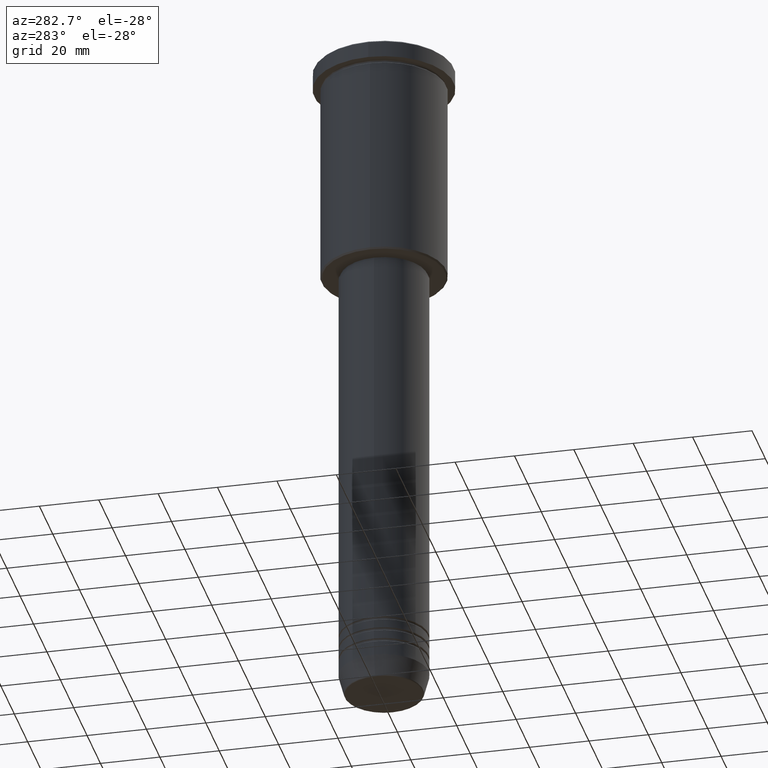
[diagram: clean part render]
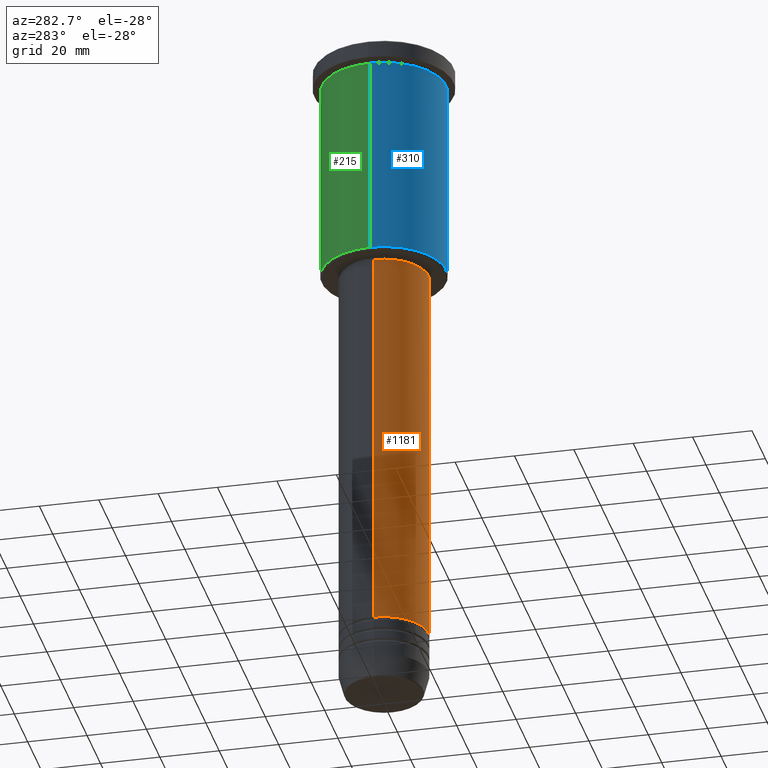
[diagram: same view with three faces highlighted in distinct colors, each labeled with its STEP entity id]
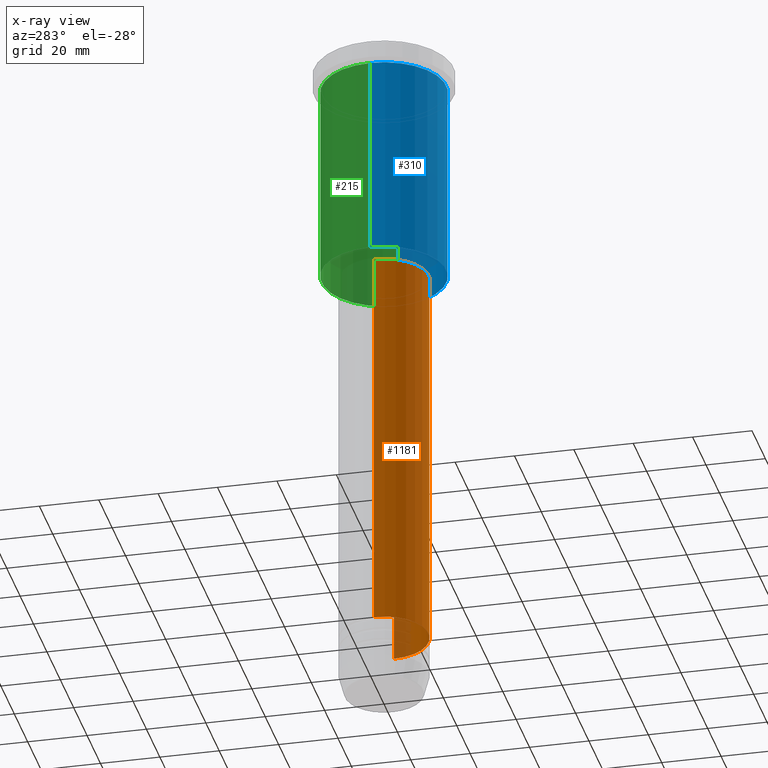
[diagram: x-ray of the same camera — body ghosted, the three highlighted faces saturated]
A machine part, auxiliary view with three faces highlighted in distinct colors.
The next image is the same camera in x-ray (body ghosted, the three faces saturated) — at least one of them is partly hidden behind the body in this view.
Their STEP definitions:

[orange] entity #1181 — the highlighted cylindrical surface (partial cylindrical patch) has radius 15 mm, axis along (-0, -0, 1).
#23 = VECTOR ( 'NONE', #330, 1000.000000000000000 ) ;
#66 = VERTEX_POINT ( 'NONE', #372 ) ;
#176 = VERTEX_POINT ( 'NONE', #199 ) ;
#183 = FACE_OUTER_BOUND ( 'NONE', #1091, .T. ) ;
#184 = DIRECTION ( 'NONE',  ( 1.000000000000000000, 0.000000000000000000, 0.000000000000000000 ) ) ;
#199 = CARTESIAN_POINT ( 'NONE',  ( 15.00000000000000000, 0.000000000000000000, -209.9999999999998863 ) ) ;
#218 = CARTESIAN_POINT ( 'NONE',  ( 0.000000000000000000, 0.000000000000000000, -209.9999999999998863 ) ) ;
#247 = ORIENTED_EDGE ( 'NONE', *, *, #375, .F. ) ;
#256 = LINE ( 'NONE', #980, #1016 ) ;
#281 = ORIENTED_EDGE ( 'NONE', *, *, #771, .F. ) ;
#330 = DIRECTION ( 'NONE',  ( -0.000000000000000000, -0.000000000000000000, 1.000000000000000000 ) ) ;
#348 = CYLINDRICAL_SURFACE ( 'NONE', #509, 15.00000000000000000 ) ;
#372 = CARTESIAN_POINT ( 'NONE',  ( -15.00000000000000000, 1.836970198721029589E-15, -209.9999999999998863 ) ) ;
#375 = EDGE_CURVE ( 'NONE', #66, #788, #256, .T. ) ;
#407 = EDGE_CURVE ( 'NONE', #66, #176, #434, .T. ) ;
#433 = CARTESIAN_POINT ( 'NONE',  ( 0.000000000000000000, 0.000000000000000000, 0.000000000000000000 ) ) ;
#434 = CIRCLE ( 'NONE', #1112, 15.00000000000000000 ) ;
#446 = ORIENTED_EDGE ( 'NONE', *, *, #584, .T. ) ;
#469 = DIRECTION ( 'NONE',  ( -0.000000000000000000, -0.000000000000000000, 1.000000000000000000 ) ) ;
#497 = VERTEX_POINT ( 'NONE', #661 ) ;
#509 = AXIS2_PLACEMENT_3D ( 'NONE', #433, #724, #629 ) ;
#545 = DIRECTION ( 'NONE',  ( -0.000000000000000000, -0.000000000000000000, 1.000000000000000000 ) ) ;
#584 = EDGE_CURVE ( 'NONE', #176, #497, #1145, .T. ) ;
#592 = AXIS2_PLACEMENT_3D ( 'NONE', #717, #545, #184 ) ;
#629 = DIRECTION ( 'NONE',  ( 1.000000000000000000, 0.000000000000000000, 0.000000000000000000 ) ) ;
#661 = CARTESIAN_POINT ( 'NONE',  ( 15.00000000000000000, 0.000000000000000000, -77.00000000000001421 ) ) ;
#687 = ORIENTED_EDGE ( 'NONE', *, *, #407, .T. ) ;
#717 = CARTESIAN_POINT ( 'NONE',  ( 0.000000000000000000, 0.000000000000000000, -77.00000000000001421 ) ) ;
#724 = DIRECTION ( 'NONE',  ( -0.000000000000000000, -0.000000000000000000, 1.000000000000000000 ) ) ;
#771 = EDGE_CURVE ( 'NONE', #788, #497, #806, .T. ) ;
#788 = VERTEX_POINT ( 'NONE', #1176 ) ;
#806 = CIRCLE ( 'NONE', #592, 15.00000000000000000 ) ;
#930 = DIRECTION ( 'NONE',  ( 1.000000000000000000, 0.000000000000000000, 0.000000000000000000 ) ) ;
#980 = CARTESIAN_POINT ( 'NONE',  ( -15.00000000000000000, 1.836970198721029589E-15, 0.000000000000000000 ) ) ;
#1016 = VECTOR ( 'NONE', #1093, 1000.000000000000000 ) ;
#1091 = EDGE_LOOP ( 'NONE', ( #247, #687, #446, #281 ) ) ;
#1093 = DIRECTION ( 'NONE',  ( -0.000000000000000000, -0.000000000000000000, 1.000000000000000000 ) ) ;
#1112 = AXIS2_PLACEMENT_3D ( 'NONE', #218, #469, #930 ) ;
#1145 = LINE ( 'NONE', #1153, #23 ) ;
#1153 = CARTESIAN_POINT ( 'NONE',  ( 15.00000000000000000, 0.000000000000000000, 0.000000000000000000 ) ) ;
#1176 = CARTESIAN_POINT ( 'NONE',  ( -15.00000000000000000, 1.836970198721029589E-15, -77.00000000000001421 ) ) ;
#1181 = ADVANCED_FACE ( 'NONE', ( #183 ), #348, .T. ) ;

[blue] entity #310 — the highlighted cylindrical surface (partial cylindrical patch) has radius 21 mm, axis along (-0, -0, 1).
#5 = AXIS2_PLACEMENT_3D ( 'NONE', #614, #637, #1081 ) ;
#50 = LINE ( 'NONE', #403, #118 ) ;
#118 = VECTOR ( 'NONE', #1137, 1000.000000000000000 ) ;
#139 = EDGE_CURVE ( 'NONE', #224, #769, #941, .T. ) ;
#152 = CARTESIAN_POINT ( 'NONE',  ( 21.00000000000000000, 0.000000000000000000, -6.999999999999993783 ) ) ;
#180 = FACE_OUTER_BOUND ( 'NONE', #682, .T. ) ;
#224 = VERTEX_POINT ( 'NONE', #421 ) ;
#225 = LINE ( 'NONE', #332, #253 ) ;
#253 = VECTOR ( 'NONE', #877, 1000.000000000000000 ) ;
#272 = VERTEX_POINT ( 'NONE', #985 ) ;
#310 = ADVANCED_FACE ( 'NONE', ( #180 ), #913, .T. ) ;
#332 = CARTESIAN_POINT ( 'NONE',  ( 21.00000000000000000, 0.000000000000000000, 0.000000000000000000 ) ) ;
#363 = CIRCLE ( 'NONE', #5, 21.00000000000000000 ) ;
#380 = DIRECTION ( 'NONE',  ( -0.000000000000000000, -0.000000000000000000, 1.000000000000000000 ) ) ;
#403 = CARTESIAN_POINT ( 'NONE',  ( -21.00000000000000000, 2.571758278209441661E-15, 0.000000000000000000 ) ) ;
#421 = CARTESIAN_POINT ( 'NONE',  ( -21.00000000000000000, 2.571758278209441661E-15, -75.50000000000001421 ) ) ;
#431 = DIRECTION ( 'NONE',  ( 1.000000000000000000, 0.000000000000000000, 0.000000000000000000 ) ) ;
#445 = ORIENTED_EDGE ( 'NONE', *, *, #918, .T. ) ;
#598 = VERTEX_POINT ( 'NONE', #152 ) ;
#614 = CARTESIAN_POINT ( 'NONE',  ( 0.000000000000000000, 0.000000000000000000, -6.999999999999993783 ) ) ;
#615 = CARTESIAN_POINT ( 'NONE',  ( 0.000000000000000000, 0.000000000000000000, 0.000000000000000000 ) ) ;
#637 = DIRECTION ( 'NONE',  ( -0.000000000000000000, -0.000000000000000000, 1.000000000000000000 ) ) ;
#682 = EDGE_LOOP ( 'NONE', ( #756, #1162, #445, #782 ) ) ;
#702 = EDGE_CURVE ( 'NONE', #224, #272, #50, .T. ) ;
#756 = ORIENTED_EDGE ( 'NONE', *, *, #702, .F. ) ;
#763 = CARTESIAN_POINT ( 'NONE',  ( 0.000000000000000000, 0.000000000000000000, -75.50000000000001421 ) ) ;
#769 = VERTEX_POINT ( 'NONE', #1077 ) ;
#782 = ORIENTED_EDGE ( 'NONE', *, *, #969, .F. ) ;
#877 = DIRECTION ( 'NONE',  ( -0.000000000000000000, -0.000000000000000000, 1.000000000000000000 ) ) ;
#881 = AXIS2_PLACEMENT_3D ( 'NONE', #615, #1174, #431 ) ;
#913 = CYLINDRICAL_SURFACE ( 'NONE', #881, 21.00000000000000000 ) ;
#918 = EDGE_CURVE ( 'NONE', #769, #598, #225, .T. ) ;
#928 = DIRECTION ( 'NONE',  ( -1.000000000000000000, 0.000000000000000000, 0.000000000000000000 ) ) ;
#941 = CIRCLE ( 'NONE', #1038, 21.00000000000000000 ) ;
#969 = EDGE_CURVE ( 'NONE', #272, #598, #363, .T. ) ;
#985 = CARTESIAN_POINT ( 'NONE',  ( -21.00000000000000000, 2.571758278209441661E-15, -6.999999999999993783 ) ) ;
#1038 = AXIS2_PLACEMENT_3D ( 'NONE', #763, #380, #928 ) ;
#1077 = CARTESIAN_POINT ( 'NONE',  ( 21.00000000000000000, 0.000000000000000000, -75.50000000000001421 ) ) ;
#1081 = DIRECTION ( 'NONE',  ( 1.000000000000000000, 0.000000000000000000, 0.000000000000000000 ) ) ;
#1137 = DIRECTION ( 'NONE',  ( -0.000000000000000000, -0.000000000000000000, 1.000000000000000000 ) ) ;
#1162 = ORIENTED_EDGE ( 'NONE', *, *, #139, .T. ) ;
#1174 = DIRECTION ( 'NONE',  ( -0.000000000000000000, -0.000000000000000000, 1.000000000000000000 ) ) ;

[green] entity #215 — the highlighted cylindrical surface (partial cylindrical patch) has radius 21 mm, axis along (-0, -0, 1).
#50 = LINE ( 'NONE', #403, #118 ) ;
#118 = VECTOR ( 'NONE', #1137, 1000.000000000000000 ) ;
#152 = CARTESIAN_POINT ( 'NONE',  ( 21.00000000000000000, 0.000000000000000000, -6.999999999999993783 ) ) ;
#158 = DIRECTION ( 'NONE',  ( -0.000000000000000000, -0.000000000000000000, 1.000000000000000000 ) ) ;
#215 = ADVANCED_FACE ( 'NONE', ( #607 ), #426, .T. ) ;
#224 = VERTEX_POINT ( 'NONE', #421 ) ;
#225 = LINE ( 'NONE', #332, #253 ) ;
#253 = VECTOR ( 'NONE', #877, 1000.000000000000000 ) ;
#272 = VERTEX_POINT ( 'NONE', #985 ) ;
#332 = CARTESIAN_POINT ( 'NONE',  ( 21.00000000000000000, 0.000000000000000000, 0.000000000000000000 ) ) ;
#342 = ORIENTED_EDGE ( 'NONE', *, *, #502, .T. ) ;
#403 = CARTESIAN_POINT ( 'NONE',  ( -21.00000000000000000, 2.571758278209441661E-15, 0.000000000000000000 ) ) ;
#404 = DIRECTION ( 'NONE',  ( -0.000000000000000000, -0.000000000000000000, 1.000000000000000000 ) ) ;
#421 = CARTESIAN_POINT ( 'NONE',  ( -21.00000000000000000, 2.571758278209441661E-15, -75.50000000000001421 ) ) ;
#426 = CYLINDRICAL_SURFACE ( 'NONE', #1070, 21.00000000000000000 ) ;
#472 = AXIS2_PLACEMENT_3D ( 'NONE', #679, #404, #1025 ) ;
#475 = AXIS2_PLACEMENT_3D ( 'NONE', #680, #775, #597 ) ;
#502 = EDGE_CURVE ( 'NONE', #769, #224, #765, .T. ) ;
#590 = ORIENTED_EDGE ( 'NONE', *, *, #691, .F. ) ;
#597 = DIRECTION ( 'NONE',  ( 1.000000000000000000, 0.000000000000000000, 0.000000000000000000 ) ) ;
#598 = VERTEX_POINT ( 'NONE', #152 ) ;
#607 = FACE_OUTER_BOUND ( 'NONE', #832, .T. ) ;
#679 = CARTESIAN_POINT ( 'NONE',  ( 0.000000000000000000, 0.000000000000000000, -75.50000000000001421 ) ) ;
#680 = CARTESIAN_POINT ( 'NONE',  ( 0.000000000000000000, 0.000000000000000000, -6.999999999999993783 ) ) ;
#691 = EDGE_CURVE ( 'NONE', #598, #272, #822, .T. ) ;
#693 = CARTESIAN_POINT ( 'NONE',  ( 0.000000000000000000, 0.000000000000000000, 0.000000000000000000 ) ) ;
#702 = EDGE_CURVE ( 'NONE', #224, #272, #50, .T. ) ;
#765 = CIRCLE ( 'NONE', #472, 21.00000000000000000 ) ;
#769 = VERTEX_POINT ( 'NONE', #1077 ) ;
#775 = DIRECTION ( 'NONE',  ( -0.000000000000000000, -0.000000000000000000, 1.000000000000000000 ) ) ;
#787 = ORIENTED_EDGE ( 'NONE', *, *, #918, .F. ) ;
#822 = CIRCLE ( 'NONE', #475, 21.00000000000000000 ) ;
#832 = EDGE_LOOP ( 'NONE', ( #342, #837, #590, #787 ) ) ;
#837 = ORIENTED_EDGE ( 'NONE', *, *, #702, .T. ) ;
#877 = DIRECTION ( 'NONE',  ( -0.000000000000000000, -0.000000000000000000, 1.000000000000000000 ) ) ;
#918 = EDGE_CURVE ( 'NONE', #769, #598, #225, .T. ) ;
#985 = CARTESIAN_POINT ( 'NONE',  ( -21.00000000000000000, 2.571758278209441661E-15, -6.999999999999993783 ) ) ;
#1025 = DIRECTION ( 'NONE',  ( -1.000000000000000000, 0.000000000000000000, 0.000000000000000000 ) ) ;
#1054 = DIRECTION ( 'NONE',  ( 1.000000000000000000, 0.000000000000000000, 0.000000000000000000 ) ) ;
#1070 = AXIS2_PLACEMENT_3D ( 'NONE', #693, #158, #1054 ) ;
#1077 = CARTESIAN_POINT ( 'NONE',  ( 21.00000000000000000, 0.000000000000000000, -75.50000000000001421 ) ) ;
#1137 = DIRECTION ( 'NONE',  ( -0.000000000000000000, -0.000000000000000000, 1.000000000000000000 ) ) ;